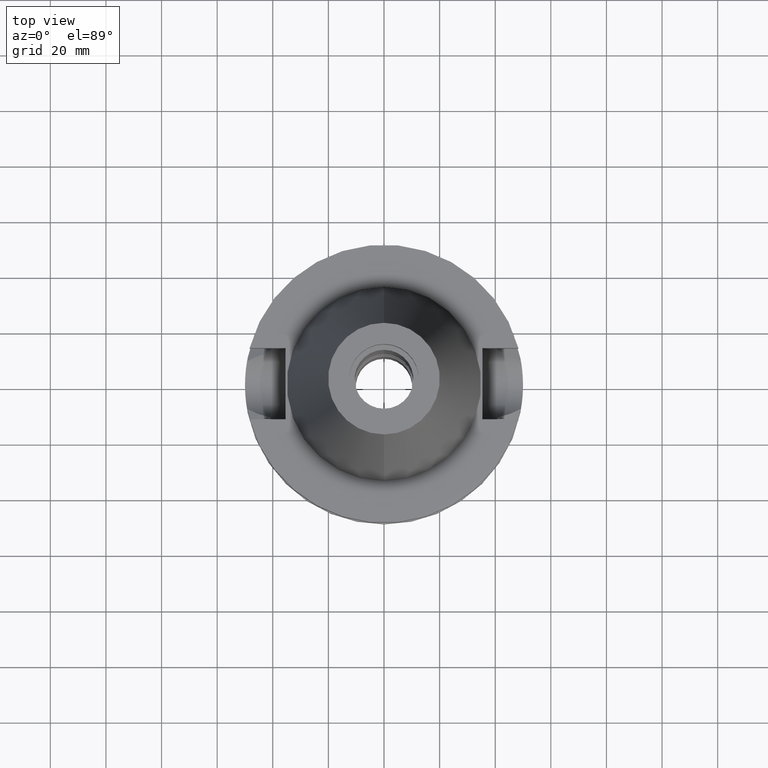
[diagram: clean part render]
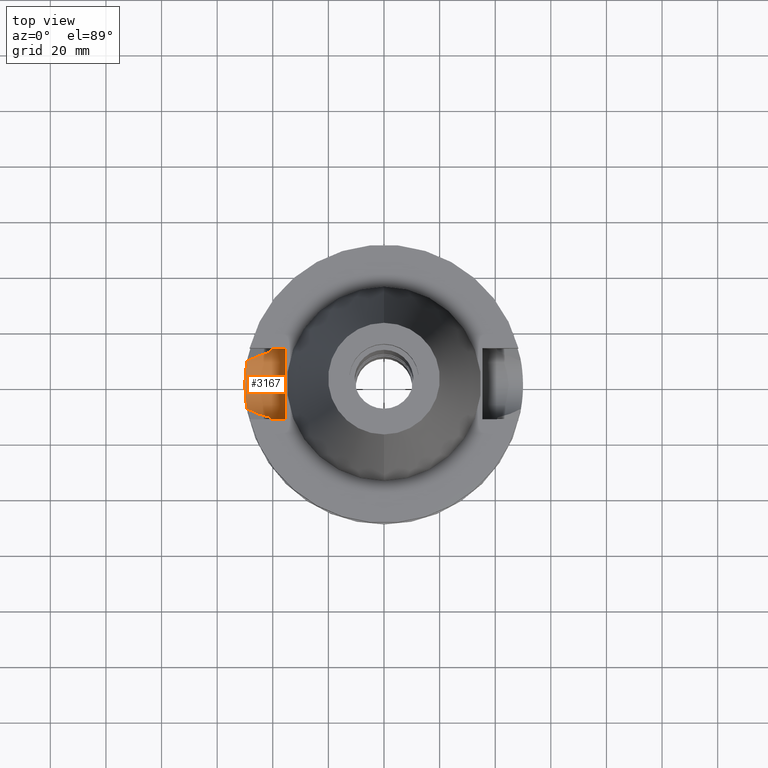
[diagram: same view with one face highlighted and labeled with its STEP entity id]
A machine part, top view. The second image highlights one B-rep face of the part: STEP entity #3167.
In plain terms, the highlighted cylindrical surface (edge-blend (fillet) strip) has radius 12.85 mm, axis along (-1, 0, 0).
Its self-contained STEP definition (entity closure, byte-faithful):
#11 = CARTESIAN_POINT ( 'NONE',  ( -49.84687376348541221, -3.916281447101001678, -33.39154925867805446 ) ) ;
#96 = CARTESIAN_POINT ( 'NONE',  ( -49.78962876866864917, 4.581554299864123436, -33.15549828133680421 ) ) ;
#118 = CARTESIAN_POINT ( 'NONE',  ( -40.51083188482000708, -12.84999999999998543, -22.03308001794205140 ) ) ;
#134 = CARTESIAN_POINT ( 'NONE',  ( -49.72636382784281039, 5.225848876189663983, -32.89088500001838611 ) ) ;
#175 = CARTESIAN_POINT ( 'NONE',  ( -40.59736864107516396, 12.57412283048225099, -23.79851909554432510 ) ) ;
#194 = CARTESIAN_POINT ( 'NONE',  ( -49.26250064874000145, -8.556052234130000045, -30.73730776426999967 ) ) ;
#215 = DIRECTION ( 'NONE',  ( -1.000000000000000000, 0.0000000000000000000, 0.0000000000000000000 ) ) ;
#273 = CIRCLE ( 'NONE', #2304, 12.84999999999999964 ) ;
#291 = CARTESIAN_POINT ( 'NONE',  ( -49.47539491657602895, 7.224428802932535199, -31.77838169713562166 ) ) ;
#345 = CARTESIAN_POINT ( 'NONE',  ( -40.74530522851353709, -12.08734613714425876, -25.53455770065779618 ) ) ;
#356 = CARTESIAN_POINT ( 'NONE',  ( -49.70771372442860780, 5.400358766253155807, -32.81176076824362298 ) ) ;
#373 = CARTESIAN_POINT ( 'NONE',  ( -49.55462058135442760, 6.658819815896005245, -32.14011575155474532 ) ) ;
#384 = VECTOR ( 'NONE', #1475, 1000.000000000000000 ) ;
#404 = ORIENTED_EDGE ( 'NONE', *, *, #3106, .T. ) ;
#411 = CARTESIAN_POINT ( 'NONE',  ( -49.81925707083688337, -4.248792679879584533, -33.27798428473187187 ) ) ;
#447 = CARTESIAN_POINT ( 'NONE',  ( -49.57459129012639920, -6.508703536869407280, -32.22988766494975721 ) ) ;
#456 = CARTESIAN_POINT ( 'NONE',  ( -47.10049521351673718, -9.658225614073213450, -29.62897339733502378 ) ) ;
#465 = CARTESIAN_POINT ( 'NONE',  ( -49.79192014176510384, -4.556612150874587819, -33.16498836657441984 ) ) ;
#469 = CARTESIAN_POINT ( 'NONE',  ( -45.48775050028926614, -10.32472322096814032, -28.80010617371449300 ) ) ;
#492 = DIRECTION ( 'NONE',  ( 1.000000000000000000, 0.0000000000000000000, 0.0000000000000000000 ) ) ;
#502 = CARTESIAN_POINT ( 'NONE',  ( -49.64409737584029614, -5.957143206864102147, -32.53749906406632419 ) ) ;
#514 = ORIENTED_EDGE ( 'NONE', *, *, #948, .T. ) ;
#515 = DIRECTION ( 'NONE',  ( 0.0000000000000000000, 0.0000000000000000000, -1.000000000000000000 ) ) ;
#532 = CARTESIAN_POINT ( 'NONE',  ( -40.85052569294000335, 11.72538061688000077, -26.40718074535000426 ) ) ;
#533 = CARTESIAN_POINT ( 'NONE',  ( -35.39999999999999858, 1.497743035356999952E-14, -21.14999999999999858 ) ) ;
#582 = B_SPLINE_CURVE_WITH_KNOTS ( 'NONE', 3,
 ( #2990, #2754, #2719, #2739, #3619, #731, #1368, #2511, #1085, #2776, #175, #3277, #1309, #1561 ),
 .UNSPECIFIED., .F., .F.,
 ( 4, 2, 2, 1, 1, 2, 2, 4 ),
 ( 0.0000000000000000000, 0.2499999999999877875, 0.3749999999999826250, 0.4374999999999801270, 0.4687499999999798495, 0.4843749999999797939, 0.4999999999999796829, 1.000000000000000000 ),
 .UNSPECIFIED. ) ;
#584 = CARTESIAN_POINT ( 'NONE',  ( -49.55287295190924368, 6.671816821827309951, -32.13223749582569866 ) ) ;
#608 = B_SPLINE_CURVE_WITH_KNOTS ( 'NONE', 3,
 ( #3490, #653, #2005, #1782, #291, #951, #2292, #934, #3253, #584, #373, #2394, #1501, #2097, #967, #356, #134, #1485, #2655, #3150, #2637, #96, #1538, #3235, #2868, #2135, #2410, #1210, #2080, #1233, #1825, #673, #2677, #695, #1266, #2853, #2692, #2970, #3216, #2571, #11, #411, #1141, #3310, #1362, #465, #1022, #3593, #2223, #3065, #502, #3332, #3045, #447, #2208, #1880, #2445, #1078, #3350, #2749, #766, #783 ),
 .UNSPECIFIED., .F., .F.,
 ( 4, 2, 2, 1, 1, 1, 1, 2, 2, 2, 2, 1, 1, 1, 2, 2, 2, 2, 1, 1, 1, 2, 2, 2, 2, 1, 1, 1, 1, 2, 2, 2, 2, 1, 1, 1, 1, 2, 2, 4 ),
 ( 0.0000000000000000000, 0.06250000000002124689, 0.09375000000003175238, 0.1093750000000369427, 0.1171875000000394823, 0.1210937500000408840, 0.1230468750000416611, 0.1240234375000417166, 0.1250000000000417721, 0.1875000000000540124, 0.2187500000000600076, 0.2343750000000629774, 0.2421875000000647260, 0.2460937500000656974, 0.2480468750000658917, 0.2500000000000660583, 0.3750000000000657252, 0.4375000000000656697, 0.4687500000000656142, 0.4843750000000655587, 0.4921875000000655587, 0.4960937500000655587, 0.5000000000000655032, 0.6250000000000651701, 0.6875000000000650591, 0.7187500000000650591, 0.7343750000000649480, 0.7421875000000649480, 0.7460937500000647260, 0.7480468750000643929, 0.7500000000000639488, 0.8125000000000494049, 0.8437500000000422995, 0.8593750000000389688, 0.8671875000000374145, 0.8710937500000364153, 0.8730468750000358602, 0.8740234375000355271, 0.8750000000000351941, 1.000000000000000000 ),
 .UNSPECIFIED. ) ;
#619 = LINE ( 'NONE', #2103, #2583 ) ;
#643 = CARTESIAN_POINT ( 'NONE',  ( -40.62482961095668088, -12.48525133053583147, -24.19329755006814153 ) ) ;
#653 = CARTESIAN_POINT ( 'NONE',  ( -49.32364745628351699, 8.203992129330076821, -31.05149864249039027 ) ) ;
#673 = CARTESIAN_POINT ( 'NONE',  ( -49.99975914031624313, 0.1346460501368164642, -33.99944274153137513 ) ) ;
#695 = CARTESIAN_POINT ( 'NONE',  ( -49.99991026463838040, 0.01811504219258412360, -34.00000834934205329 ) ) ;
#724 = ORIENTED_EDGE ( 'NONE', *, *, #1997, .F. ) ;
#731 = CARTESIAN_POINT ( 'NONE',  ( -40.56599673094051184, 12.67509433839780897, -23.26596311455570998 ) ) ;
#747 = CARTESIAN_POINT ( 'NONE',  ( -40.85052569294000335, -11.72538061688000077, -26.40718074535000426 ) ) ;
#754 = CARTESIAN_POINT ( 'NONE',  ( -40.85052569294000335, -11.72538061688000077, -26.40718074535000426 ) ) ;
#766 = CARTESIAN_POINT ( 'NONE',  ( -49.38342353137736751, -7.859824181560216338, -31.35864628089272799 ) ) ;
#773 = DIRECTION ( 'NONE',  ( 0.0000000000000000000, -1.000000000000000000, 0.0000000000000000000 ) ) ;
#782 = ORIENTED_EDGE ( 'NONE', *, *, #3223, .T. ) ;
#783 = CARTESIAN_POINT ( 'NONE',  ( -49.26250064874000145, -8.556052234130000045, -30.73730776426999967 ) ) ;
#812 = CARTESIAN_POINT ( 'NONE',  ( -42.65282647486308321, 11.30683512041312078, -27.34068588608615613 ) ) ;
#837 = ORIENTED_EDGE ( 'NONE', *, *, #2793, .F. ) ;
#900 = CARTESIAN_POINT ( 'NONE',  ( -40.60257095199571609, -12.55731571366193577, -23.87709474182198122 ) ) ;
#934 = CARTESIAN_POINT ( 'NONE',  ( -49.54042289468318927, 6.763708972775127393, -32.07601203796935607 ) ) ;
#948 = EDGE_CURVE ( 'NONE', #2804, #1763, #273, .T. ) ;
#951 = CARTESIAN_POINT ( 'NONE',  ( -49.50767232408880147, 6.999135335529196311, -31.92695211143248457 ) ) ;
#967 = CARTESIAN_POINT ( 'NONE',  ( -49.64857037787541572, 5.927508037058057511, -32.55786152399240052 ) ) ;
#1022 = CARTESIAN_POINT ( 'NONE',  ( -49.79071482015630323, -4.569755982014384266, -33.15999402028722187 ) ) ;
#1028 = CARTESIAN_POINT ( 'NONE',  ( -45.37173582071795863, -10.36860433304607731, -28.74042812790622392 ) ) ;
#1054 = B_SPLINE_CURVE_WITH_KNOTS ( 'NONE', 3,
 ( #532, #812, #1087, #2273, #1703, #3677 ),
 .UNSPECIFIED., .F., .F.,
 ( 4, 2, 4 ),
 ( 0.0000000000000000000, 0.5000000000000000000, 1.000000000000000000 ),
 .UNSPECIFIED. ) ;
#1078 = CARTESIAN_POINT ( 'NONE',  ( -49.55544356040502407, -6.652706688684250302, -32.14381806456539437 ) ) ;
#1085 = CARTESIAN_POINT ( 'NONE',  ( -40.59188398425018818, 12.59182459259148956, -23.71305796896682949 ) ) ;
#1087 = CARTESIAN_POINT ( 'NONE',  ( -44.24066165069599066, 10.80637458481063717, -28.15885345118574179 ) ) ;
#1104 = VERTEX_POINT ( 'NONE', #194 ) ;
#1121 = CARTESIAN_POINT ( 'NONE',  ( -35.39999999999999858, 12.84999999999999964, -21.14999999999999858 ) ) ;
#1141 = CARTESIAN_POINT ( 'NONE',  ( -49.80473949750292206, -4.414664528255496379, -33.21804433588508232 ) ) ;
#1196 = VERTEX_POINT ( 'NONE', #3151 ) ;
#1197 = CARTESIAN_POINT ( 'NONE',  ( -40.79434743164174648, -11.92110232362476019, -25.97065181136010992 ) ) ;
#1210 = CARTESIAN_POINT ( 'NONE',  ( -49.97901735205996232, 1.478661054488751514, -33.92031390564770277 ) ) ;
#1223 = ORIENTED_EDGE ( 'NONE', *, *, #2275, .T. ) ;
#1233 = CARTESIAN_POINT ( 'NONE',  ( -49.99648034221863213, 0.6264769066307140921, -33.98713079868909404 ) ) ;
#1266 = CARTESIAN_POINT ( 'NONE',  ( -49.99991273105899836, -0.006584162488167569910, -34.00001921904485158 ) ) ;
#1294 = CARTESIAN_POINT ( 'NONE',  ( -49.26250064874000145, -8.556052234130000045, -30.73730776426999967 ) ) ;
#1309 = CARTESIAN_POINT ( 'NONE',  ( -40.73816957792652715, 12.11682261037110386, -25.53412604446968004 ) ) ;
#1353 = CARTESIAN_POINT ( 'NONE',  ( -48.08483011566134735, -9.198693832837493645, -30.13408477864820867 ) ) ;
#1362 = CARTESIAN_POINT ( 'NONE',  ( -49.79407851259968965, -4.532968099423296593, -33.17392864050795254 ) ) ;
#1368 = CARTESIAN_POINT ( 'NONE',  ( -40.57496101843508995, 12.64633755876300647, -23.43369807928905146 ) ) ;
#1475 = DIRECTION ( 'NONE',  ( 1.000000000000000000, 3.301887120261000215E-14, -2.502482870091999982E-14 ) ) ;
#1485 = CARTESIAN_POINT ( 'NONE',  ( -49.75274246480874751, 4.966444649530017408, -33.00182567405806822 ) ) ;
#1487 = VERTEX_POINT ( 'NONE', #747 ) ;
#1501 = CARTESIAN_POINT ( 'NONE',  ( -49.55619131752229833, 6.647123698534978864, -32.14719460434604059 ) ) ;
#1526 = DIRECTION ( 'NONE',  ( -1.000000000000000000, 3.440913946376999995E-14, 0.0000000000000000000 ) ) ;
#1538 = CARTESIAN_POINT ( 'NONE',  ( -49.79157753245404194, 4.560342035705335029, -33.16357187946881169 ) ) ;
#1561 = CARTESIAN_POINT ( 'NONE',  ( -40.85052569294000335, 11.72538061688000077, -26.40718074535000426 ) ) ;
#1580 = CARTESIAN_POINT ( 'NONE',  ( -45.96814831800209333, -10.13811678404542782, -29.04716922425733117 ) ) ;
#1589 = ORIENTED_EDGE ( 'NONE', *, *, #2289, .T. ) ;
#1676 = CYLINDRICAL_SURFACE ( 'NONE', #1810, 12.85000000000000320 ) ;
#1703 = CARTESIAN_POINT ( 'NONE',  ( -48.20261884556736476, 9.164282311039627871, -30.19450175069877318 ) ) ;
#1763 = VERTEX_POINT ( 'NONE', #1121 ) ;
#1771 = CARTESIAN_POINT ( 'NONE',  ( -40.61156896389279325, -12.52821669071489552, -24.00856318994577876 ) ) ;
#1782 = CARTESIAN_POINT ( 'NONE',  ( -49.45236745621808439, 7.380351696620425450, -31.67104300660689020 ) ) ;
#1789 = CARTESIAN_POINT ( 'NONE',  ( -40.60613670648186968, -12.54578755583301231, -23.92964714799551729 ) ) ;
#1810 = AXIS2_PLACEMENT_3D ( 'NONE', #3620, #215, #515 ) ;
#1825 = CARTESIAN_POINT ( 'NONE',  ( -49.99914261769716717, 0.2981666957382474448, -33.99713625435985875 ) ) ;
#1828 = B_SPLINE_CURVE_WITH_KNOTS ( 'NONE', 3,
 ( #2958, #1197, #345, #2695, #2325, #2660, #643, #1771, #1789, #900, #2681, #2040, #118, #2360 ),
 .UNSPECIFIED., .F., .F.,
 ( 4, 2, 2, 1, 1, 2, 2, 4 ),
 ( 0.0000000000000000000, 0.2499999999999908407, 0.3749999999999861222, 0.4374999999999826250, 0.4687499999999819034, 0.4843749999999814593, 0.4999999999999810707, 1.000000000000000000 ),
 .UNSPECIFIED. ) ;
#1864 = CARTESIAN_POINT ( 'NONE',  ( -46.23529079402484143, -10.02910626258647753, -29.18449093614975709 ) ) ;
#1880 = CARTESIAN_POINT ( 'NONE',  ( -49.55915644609913784, -6.625001972059656907, -32.16054684388402762 ) ) ;
#1885 = CARTESIAN_POINT ( 'NONE',  ( -42.53181762139134747, -11.33493681750969095, -27.27800911874667023 ) ) ;
#1923 = CARTESIAN_POINT ( 'NONE',  ( -45.34846488258860120, -10.37735726561883531, -28.72845704361247954 ) ) ;
#1997 = EDGE_CURVE ( 'NONE', #2804, #2455, #619, .T. ) ;
#2005 = CARTESIAN_POINT ( 'NONE',  ( -49.37875750909595496, 7.862734582065615818, -31.32141353710037635 ) ) ;
#2040 = CARTESIAN_POINT ( 'NONE',  ( -40.54025086427707691, -12.75862911298345992, -22.93149008171479508 ) ) ;
#2045 = EDGE_CURVE ( 'NONE', #1487, #2455, #1828, .T. ) ;
#2080 = CARTESIAN_POINT ( 'NONE',  ( -49.99174828282504990, 0.9098557498448179848, -33.96916052068873171 ) ) ;
#2097 = CARTESIAN_POINT ( 'NONE',  ( -49.60488409842572111, 6.283811132820102507, -32.36654260498875146 ) ) ;
#2103 = CARTESIAN_POINT ( 'NONE',  ( -35.39999999999999858, -12.84999999999999964, -21.14999999999999858 ) ) ;
#2135 = CARTESIAN_POINT ( 'NONE',  ( -49.91457795822588395, 3.009609487579061771, -33.66678711880231134 ) ) ;
#2163 = CARTESIAN_POINT ( 'NONE',  ( -40.51083188481999997, 12.84999999999999964, -21.14999999999999858 ) ) ;
#2174 = CARTESIAN_POINT ( 'NONE',  ( -45.33533133940398585, -10.38228729571972231, -28.72170076077539136 ) ) ;
#2183 = CARTESIAN_POINT ( 'NONE',  ( -40.51083188481999997, -12.84999999999999964, -21.14999999999999858 ) ) ;
#2208 = CARTESIAN_POINT ( 'NONE',  ( -49.56433009246646293, -6.586224381996309774, -32.18382597125327038 ) ) ;
#2223 = CARTESIAN_POINT ( 'NONE',  ( -49.72374525072782347, -5.259370622541874596, -32.88078653144322772 ) ) ;
#2273 = CARTESIAN_POINT ( 'NONE',  ( -46.98627468532401963, 9.746406323360600865, -29.57076731345760123 ) ) ;
#2275 = EDGE_CURVE ( 'NONE', #2374, #1196, #582, .T. ) ;
#2289 = EDGE_CURVE ( 'NONE', #1104, #1487, #2590, .T. ) ;
#2290 = ORIENTED_EDGE ( 'NONE', *, *, #2045, .T. ) ;
#2292 = CARTESIAN_POINT ( 'NONE',  ( -49.52324508208915432, 6.888632652548860591, -31.99812721892677914 ) ) ;
#2304 = AXIS2_PLACEMENT_3D ( 'NONE', #533, #492, #773 ) ;
#2325 = CARTESIAN_POINT ( 'NONE',  ( -40.66327695313978552, -12.35977177933932225, -24.67238797837626052 ) ) ;
#2326 = LINE ( 'NONE', #2665, #384 ) ;
#2332 = EDGE_LOOP ( 'NONE', ( #2290, #724, #514, #837, #1223, #404, #782, #1589 ) ) ;
#2360 = CARTESIAN_POINT ( 'NONE',  ( -40.51083188481999997, -12.84999999999999964, -21.14999999999999858 ) ) ;
#2374 = VERTEX_POINT ( 'NONE', #2163 ) ;
#2394 = CARTESIAN_POINT ( 'NONE',  ( -49.55578272001707774, 6.650167653861713823, -32.14535337079588828 ) ) ;
#2410 = CARTESIAN_POINT ( 'NONE',  ( -49.96617431557938005, 1.860606361008538823, -33.87053246647560911 ) ) ;
#2434 = CARTESIAN_POINT ( 'NONE',  ( -48.69612804938636685, -8.881074183398734334, -30.44724669148975238 ) ) ;
#2445 = CARTESIAN_POINT ( 'NONE',  ( -49.55692994461231393, -6.641624362677569060, -32.15051670366060677 ) ) ;
#2450 = CARTESIAN_POINT ( 'NONE',  ( -46.76115224587567099, -9.808580704934581007, -29.45471629088447685 ) ) ;
#2455 = VERTEX_POINT ( 'NONE', #2183 ) ;
#2490 = CARTESIAN_POINT ( 'NONE',  ( -45.64911153330526616, -10.26293009202969841, -28.88310240311624000 ) ) ;
#2511 = CARTESIAN_POINT ( 'NONE',  ( -40.58662608485431633, 12.60878154790536598, -23.62927549513685221 ) ) ;
#2571 = CARTESIAN_POINT ( 'NONE',  ( -49.86811357886522700, -3.630246828183115504, -33.47814103734084057 ) ) ;
#2583 = VECTOR ( 'NONE', #1526, 1000.000000000000000 ) ;
#2590 = B_SPLINE_CURVE_WITH_KNOTS ( 'NONE', 3,
 ( #1294, #2434, #1353, #456, #2450, #1864, #1580, #2490, #469, #3011, #1028, #1923, #2174, #3318, #1885, #754 ),
 .UNSPECIFIED., .F., .F.,
 ( 4, 2, 2, 1, 1, 1, 1, 2, 2, 4 ),
 ( 0.0000000000000000000, 0.2500000000000153211, 0.3750000000000230926, 0.4375000000000280331, 0.4687500000000308642, 0.4843750000000315303, 0.4921875000000316414, 0.4960937500000315858, 0.5000000000000315303, 1.000000000000000000 ),
 .UNSPECIFIED. ) ;
#2637 = CARTESIAN_POINT ( 'NONE',  ( -49.78669315019246966, 4.613394701561494671, -33.14333125227960863 ) ) ;
#2655 = CARTESIAN_POINT ( 'NONE',  ( -49.76553265375289214, 4.837331713298954838, -33.05535982821475471 ) ) ;
#2660 = CARTESIAN_POINT ( 'NONE',  ( -40.63719938804874943, -12.44499676301189162, -24.35261212848416079 ) ) ;
#2665 = CARTESIAN_POINT ( 'NONE',  ( -40.51083188481999997, 12.84999999999999964, -21.14999999999999858 ) ) ;
#2677 = CARTESIAN_POINT ( 'NONE',  ( -49.99987023248441176, 0.06470805788047910567, -33.99985819377629070 ) ) ;
#2681 = CARTESIAN_POINT ( 'NONE',  ( -40.60092750940732031, -12.56262654778352506, -23.85254111937892674 ) ) ;
#2688 = CARTESIAN_POINT ( 'NONE',  ( -49.26250064874000145, 8.556052234130000045, -30.73730776426999967 ) ) ;
#2692 = CARTESIAN_POINT ( 'NONE',  ( -49.98172387697955088, -1.530259643297590344, -33.93210970168623675 ) ) ;
#2695 = CARTESIAN_POINT ( 'NONE',  ( -40.68244601107633684, -12.29666625011165415, -24.88710380518764254 ) ) ;
#2719 = CARTESIAN_POINT ( 'NONE',  ( -40.51818719763605969, 12.82722225432310204, -22.03686830847411215 ) ) ;
#2739 = CARTESIAN_POINT ( 'NONE',  ( -40.54025313608427439, 12.75731810731626759, -22.70684014861360467 ) ) ;
#2749 = CARTESIAN_POINT ( 'NONE',  ( -49.48057468225524502, -7.209465214948460599, -31.80614402865108303 ) ) ;
#2754 = CARTESIAN_POINT ( 'NONE',  ( -40.51083188482000708, 12.85000000000002451, -21.59154171183185866 ) ) ;
#2776 = CARTESIAN_POINT ( 'NONE',  ( -40.59544671389546977, 12.58032818125508001, -23.76890350620164227 ) ) ;
#2780 = FACE_OUTER_BOUND ( 'NONE', #2332, .T. ) ;
#2793 = EDGE_CURVE ( 'NONE', #2374, #1763, #2326, .T. ) ;
#2804 = VERTEX_POINT ( 'NONE', #3169 ) ;
#2853 = CARTESIAN_POINT ( 'NONE',  ( -49.99945721727044656, -0.7714997717202085603, -33.99824750167574194 ) ) ;
#2868 = CARTESIAN_POINT ( 'NONE',  ( -49.86275738944137714, 3.780006175297811133, -33.45822970231998283 ) ) ;
#2958 = CARTESIAN_POINT ( 'NONE',  ( -40.85052569294000335, -11.72538061688000077, -26.40718074535000426 ) ) ;
#2970 = CARTESIAN_POINT ( 'NONE',  ( -49.92918642161746590, -2.674950105877197615, -33.72447902227082750 ) ) ;
#2990 = CARTESIAN_POINT ( 'NONE',  ( -40.51083188481999997, 12.84999999999999964, -21.14999999999999858 ) ) ;
#3011 = CARTESIAN_POINT ( 'NONE',  ( -45.40660932361436863, -10.35546363120070446, -28.75836759223123096 ) ) ;
#3045 = CARTESIAN_POINT ( 'NONE',  ( -49.59476930514755111, -6.353818073204639205, -32.32003745832062691 ) ) ;
#3065 = CARTESIAN_POINT ( 'NONE',  ( -49.66479649953059550, -5.781788914171505311, -32.62740715274359360 ) ) ;
#3106 = EDGE_CURVE ( 'NONE', #1196, #3566, #1054, .T. ) ;
#3150 = CARTESIAN_POINT ( 'NONE',  ( -49.77975606416142540, 4.687841416820160312, -33.11454327612035797 ) ) ;
#3151 = CARTESIAN_POINT ( 'NONE',  ( -40.85052569294000335, 11.72538061688000077, -26.40718074535000426 ) ) ;
#3167 = ADVANCED_FACE ( 'NONE', ( #2780 ), #1676, .F. ) ;
#3169 = CARTESIAN_POINT ( 'NONE',  ( -35.39999999999999858, -12.84999999999999964, -21.14999999999999858 ) ) ;
#3216 = CARTESIAN_POINT ( 'NONE',  ( -49.90735102900914910, -3.057557832562147304, -33.63722763390427417 ) ) ;
#3223 = EDGE_CURVE ( 'NONE', #3566, #1104, #608, .T. ) ;
#3235 = CARTESIAN_POINT ( 'NONE',  ( -49.79243189272258974, 4.551013503808366778, -33.16711017034597120 ) ) ;
#3253 = CARTESIAN_POINT ( 'NONE',  ( -49.54876419971193258, 6.702274093345470973, -32.11370156863791436 ) ) ;
#3277 = CARTESIAN_POINT ( 'NONE',  ( -40.65435955981745053, 12.39001970624488891, -24.66361747048510011 ) ) ;
#3310 = CARTESIAN_POINT ( 'NONE',  ( -49.79730340408350742, -4.497493828888362799, -33.18728234308385083 ) ) ;
#3318 = CARTESIAN_POINT ( 'NONE',  ( -44.02336273713185477, -10.87398148870530434, -28.04677767020836399 ) ) ;
#3332 = CARTESIAN_POINT ( 'NONE',  ( -49.61147438036794455, -6.221391045786490714, -32.39396909395019719 ) ) ;
#3350 = CARTESIAN_POINT ( 'NONE',  ( -49.55452737808550978, -6.659527011965018062, -32.13968720374587917 ) ) ;
#3490 = CARTESIAN_POINT ( 'NONE',  ( -49.26250064874000145, 8.556052234130000045, -30.73730776426999967 ) ) ;
#3566 = VERTEX_POINT ( 'NONE', #2688 ) ;
#3593 = CARTESIAN_POINT ( 'NONE',  ( -49.75884625836098962, -4.915990746326068361, -33.02790654672830328 ) ) ;
#3619 = CARTESIAN_POINT ( 'NONE',  ( -40.54944727710435615, 12.72806419699667480, -22.93049076237651462 ) ) ;
#3620 = CARTESIAN_POINT ( 'NONE',  ( -35.39999999999999858, 1.497743035356999952E-14, -21.14999999999999858 ) ) ;
#3677 = CARTESIAN_POINT ( 'NONE',  ( -49.26250064874000145, 8.556052234130000045, -30.73730776426999967 ) ) ;